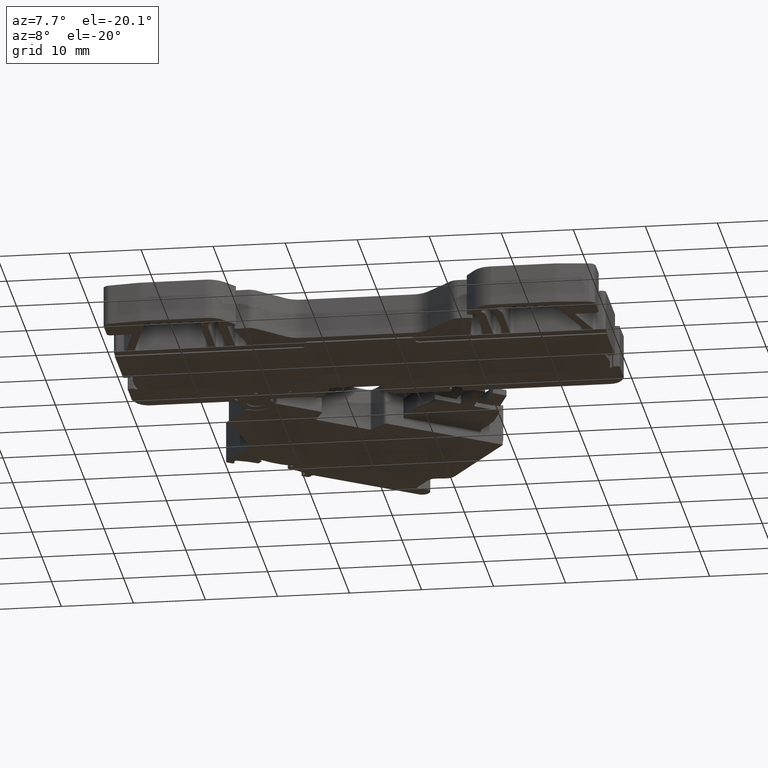
[diagram: clean part render]
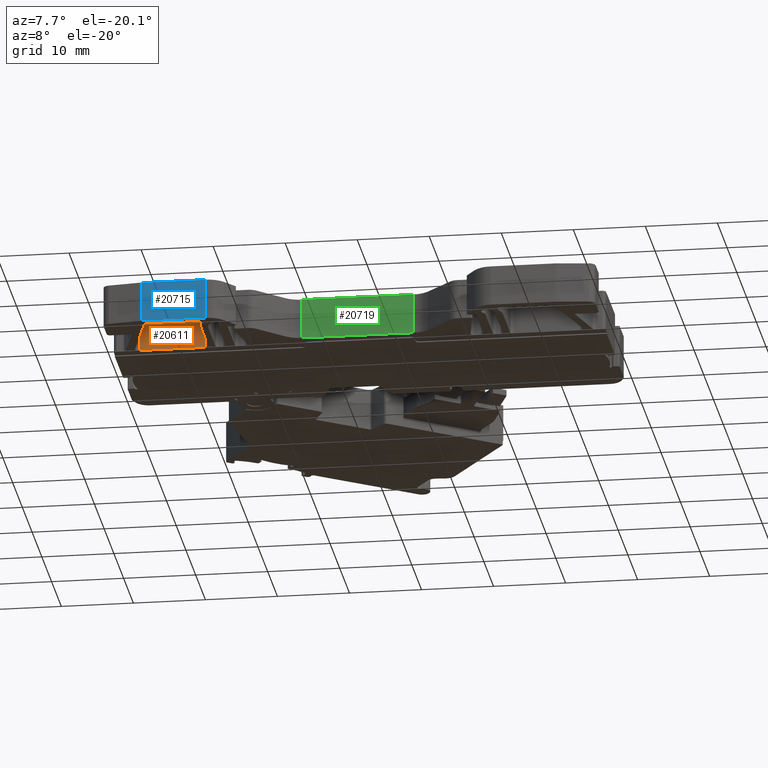
[diagram: same view with three faces highlighted in distinct colors, each labeled with its STEP entity id]
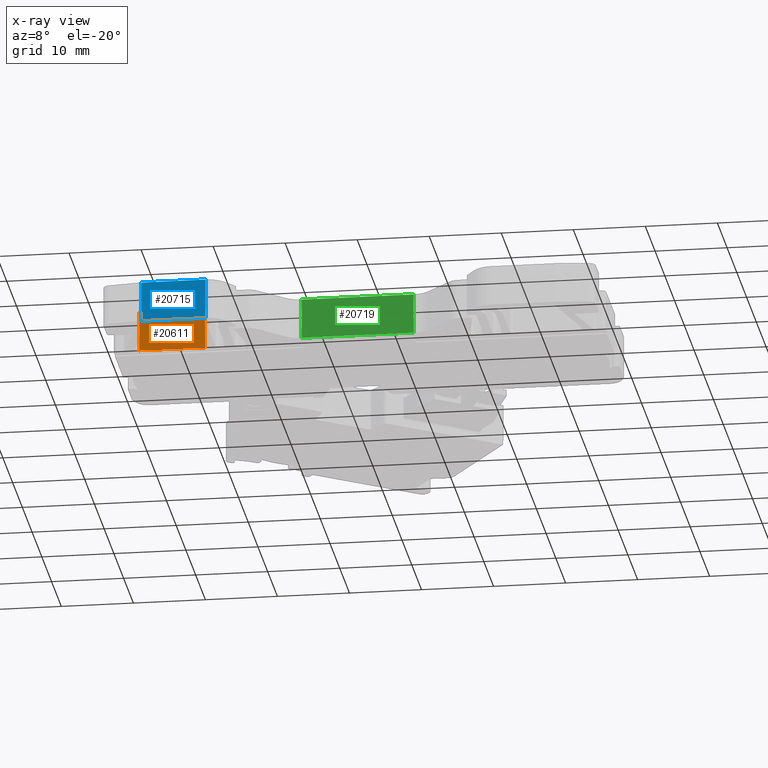
[diagram: x-ray of the same camera — body ghosted, the three highlighted faces saturated]
A machine part, auxiliary view with three faces highlighted in distinct colors.
The next image is the same camera in x-ray (body ghosted, the three faces saturated) — at least one of them is partly hidden behind the body in this view.
Their STEP definitions:

[orange] entity #20611 — the highlighted planar face has unit normal (0, -1, 0).
#1642 = AXIS2_PLACEMENT_3D ( 'NONE', #12755, #12787, #12780 ) ;
#1652 = VECTOR ( 'NONE', #12016, 1000.000000000000000 ) ;
#1868 = CARTESIAN_POINT ( 'NONE',  ( 1533.702505403980000, 724.6847033329281700, 5.799999999999999800 ) ) ;
#1927 = CARTESIAN_POINT ( 'NONE',  ( 1533.702505403980000, 724.6847033329281700, 0.1999999999999997900 ) ) ;
#4038 = VECTOR ( 'NONE', #9867, 1000.000000000000000 ) ;
#4180 = VECTOR ( 'NONE', #9605, 1000.000000000000000 ) ;
#4304 = VECTOR ( 'NONE', #9727, 1000.000000000000000 ) ;
#5249 = VERTEX_POINT ( 'NONE', #18714 ) ;
#5288 = VERTEX_POINT ( 'NONE', #18850 ) ;
#6513 = EDGE_CURVE ( 'NONE', #5249, #5288, #9856, .T. ) ;
#6698 = EDGE_CURVE ( 'NONE', #5249, #11680, #9574, .T. ) ;
#6751 = EDGE_CURVE ( 'NONE', #11630, #5288, #9717, .T. ) ;
#9574 = LINE ( 'NONE', #9593, #4180 ) ;
#9593 = CARTESIAN_POINT ( 'NONE',  ( 1597.939456204810100, 724.6847033329282800, 0.2000000000000000100 ) ) ;
#9605 = DIRECTION ( 'NONE',  ( -1.000000000000000000, 0.0000000000000000000, -0.0000000000000000000 ) ) ;
#9717 = LINE ( 'NONE', #9725, #4304 ) ;
#9725 = CARTESIAN_POINT ( 'NONE',  ( 1544.274038733460000, 724.6847033329282800, 5.799999999999999800 ) ) ;
#9727 = DIRECTION ( 'NONE',  ( 1.000000000000000000, 0.0000000000000000000, -0.0000000000000000000 ) ) ;
#9856 = LINE ( 'NONE', #9862, #4038 ) ;
#9862 = CARTESIAN_POINT ( 'NONE',  ( 1542.836139661806800, 724.6847033329282800, 5.799999999999999800 ) ) ;
#9867 = DIRECTION ( 'NONE',  ( -0.0000000000000000000, 0.0000000000000000000, 1.000000000000000000 ) ) ;
#11242 = EDGE_LOOP ( 'NONE', ( #25255, #25244, #25254, #25205 ) ) ;
#11630 = VERTEX_POINT ( 'NONE', #1868 ) ;
#11680 = VERTEX_POINT ( 'NONE', #1927 ) ;
#11845 = LINE ( 'NONE', #12051, #1652 ) ;
#12016 = DIRECTION ( 'NONE',  ( 0.0000000000000000000, -0.0000000000000000000, -1.000000000000000000 ) ) ;
#12051 = CARTESIAN_POINT ( 'NONE',  ( 1533.702505403980000, 724.6847033329282800, 5.799999999999999800 ) ) ;
#12667 = PLANE ( 'NONE',  #1642 ) ;
#12755 = CARTESIAN_POINT ( 'NONE',  ( 1542.836137816010000, 724.6847033329282800, 5.799999999999999800 ) ) ;
#12772 = FACE_OUTER_BOUND ( 'NONE', #11242, .T. ) ;
#12780 = DIRECTION ( 'NONE',  ( 0.0000000000000000000, -0.0000000000000000000, -1.000000000000000000 ) ) ;
#12787 = DIRECTION ( 'NONE',  ( 0.0000000000000000000, -1.000000000000000000, 0.0000000000000000000 ) ) ;
#18714 = CARTESIAN_POINT ( 'NONE',  ( 1542.836139661806800, 724.6847033329265700, 0.1999999999999997900 ) ) ;
#18850 = CARTESIAN_POINT ( 'NONE',  ( 1542.836136463860800, 724.6847033329268000, 5.799999999999998900 ) ) ;
#20525 = EDGE_CURVE ( 'NONE', #11630, #11680, #11845, .T. ) ;
#20611 = ADVANCED_FACE ( 'NONE', ( #12772 ), #12667, .T. ) ;
#25205 = ORIENTED_EDGE ( 'NONE', *, *, #6698, .F. ) ;
#25244 = ORIENTED_EDGE ( 'NONE', *, *, #6751, .F. ) ;
#25254 = ORIENTED_EDGE ( 'NONE', *, *, #20525, .T. ) ;
#25255 = ORIENTED_EDGE ( 'NONE', *, *, #6513, .T. ) ;

[blue] entity #20715 — the highlighted planar face has unit normal (0, 1, 0).
#372 = AXIS2_PLACEMENT_3D ( 'NONE', #13479, #13488, #13458 ) ;
#548 = VECTOR ( 'NONE', #22845, 1000.000000000000000 ) ;
#1770 = CARTESIAN_POINT ( 'NONE',  ( 1535.570949267440000, 712.9846922092302700, 5.799999999999999800 ) ) ;
#2307 = CARTESIAN_POINT ( 'NONE',  ( 1535.570949267440000, 712.9846922092302700, 0.1999999999999997900 ) ) ;
#4207 = VECTOR ( 'NONE', #9603, 1000.000000000000000 ) ;
#4280 = VECTOR ( 'NONE', #18393, 1000.000000000000000 ) ;
#4287 = VECTOR ( 'NONE', #9805, 1000.000000000000000 ) ;
#5546 = VERTEX_POINT ( 'NONE', #19302 ) ;
#5547 = VERTEX_POINT ( 'NONE', #19255 ) ;
#6697 = EDGE_CURVE ( 'NONE', #5547, #5546, #9561, .T. ) ;
#6767 = EDGE_CURVE ( 'NONE', #5546, #17417, #9775, .T. ) ;
#6782 = EDGE_CURVE ( 'NONE', #11463, #5547, #18400, .T. ) ;
#7341 = EDGE_CURVE ( 'NONE', #17417, #11463, #22805, .T. ) ;
#9561 = LINE ( 'NONE', #9583, #4207 ) ;
#9583 = CARTESIAN_POINT ( 'NONE',  ( 1544.467661418855000, 712.9846922092302700, 5.799999999999999800 ) ) ;
#9603 = DIRECTION ( 'NONE',  ( -0.0000000000000000000, 0.0000000000000000000, -1.000000000000000000 ) ) ;
#9775 = LINE ( 'NONE', #9802, #4287 ) ;
#9802 = CARTESIAN_POINT ( 'NONE',  ( 1597.939456204810100, 712.9846922092302700, 0.2000000000000000100 ) ) ;
#9805 = DIRECTION ( 'NONE',  ( -1.000000000000000000, 0.0000000000000000000, -0.0000000000000000000 ) ) ;
#11183 = EDGE_LOOP ( 'NONE', ( #25230, #25226, #25242, #25220 ) ) ;
#11463 = VERTEX_POINT ( 'NONE', #1770 ) ;
#13458 = DIRECTION ( 'NONE',  ( 0.0000000000000000000, -0.0000000000000000000, 1.000000000000000000 ) ) ;
#13459 = FACE_OUTER_BOUND ( 'NONE', #11183, .T. ) ;
#13477 = PLANE ( 'NONE',  #372 ) ;
#13479 = CARTESIAN_POINT ( 'NONE',  ( 1544.467661418855000, 712.9846922092302700, 5.799999999999999800 ) ) ;
#13488 = DIRECTION ( 'NONE',  ( 0.0000000000000000000, 1.000000000000000000, 0.0000000000000000000 ) ) ;
#17417 = VERTEX_POINT ( 'NONE', #2307 ) ;
#18393 = DIRECTION ( 'NONE',  ( 1.000000000000000000, 0.0000000000000000000, -0.0000000000000000000 ) ) ;
#18395 = CARTESIAN_POINT ( 'NONE',  ( 1544.274038733460000, 712.9846922092302700, 5.799999999999999800 ) ) ;
#18400 = LINE ( 'NONE', #18395, #4280 ) ;
#19255 = CARTESIAN_POINT ( 'NONE',  ( 1544.467662230272500, 712.9846922092302700, 5.799999999999999800 ) ) ;
#19302 = CARTESIAN_POINT ( 'NONE',  ( 1544.467662230272500, 712.9846922092302700, 0.1999999999999996500 ) ) ;
#20715 = ADVANCED_FACE ( 'NONE', ( #13459 ), #13477, .F. ) ;
#22805 = LINE ( 'NONE', #22849, #548 ) ;
#22845 = DIRECTION ( 'NONE',  ( 0.0000000000000000000, -0.0000000000000000000, 1.000000000000000000 ) ) ;
#22849 = CARTESIAN_POINT ( 'NONE',  ( 1535.570949267440000, 712.9846922092302700, 5.799999999999999800 ) ) ;
#25220 = ORIENTED_EDGE ( 'NONE', *, *, #6697, .F. ) ;
#25226 = ORIENTED_EDGE ( 'NONE', *, *, #7341, .F. ) ;
#25230 = ORIENTED_EDGE ( 'NONE', *, *, #6782, .F. ) ;
#25242 = ORIENTED_EDGE ( 'NONE', *, *, #6767, .F. ) ;

[green] entity #20719 — the highlighted planar face has unit normal (0, 1, 0).
#348 = AXIS2_PLACEMENT_3D ( 'NONE', #13465, #13485, #13450 ) ;
#4171 = VECTOR ( 'NONE', #9499, 1000.000000000000000 ) ;
#4205 = VECTOR ( 'NONE', #9568, 1000.000000000000000 ) ;
#4206 = VECTOR ( 'NONE', #9679, 1000.000000000000000 ) ;
#4274 = VECTOR ( 'NONE', #9818, 1000.000000000000000 ) ;
#5499 = VERTEX_POINT ( 'NONE', #19205 ) ;
#5514 = VERTEX_POINT ( 'NONE', #19229 ) ;
#5516 = VERTEX_POINT ( 'NONE', #19244 ) ;
#5530 = VERTEX_POINT ( 'NONE', #19264 ) ;
#6682 = EDGE_CURVE ( 'NONE', #5530, #5514, #9491, .T. ) ;
#6689 = EDGE_CURVE ( 'NONE', #5530, #5499, #9557, .T. ) ;
#6729 = EDGE_CURVE ( 'NONE', #5514, #5516, #9701, .T. ) ;
#6775 = EDGE_CURVE ( 'NONE', #5516, #5499, #9831, .T. ) ;
#9491 = LINE ( 'NONE', #9498, #4171 ) ;
#9498 = CARTESIAN_POINT ( 'NONE',  ( 1544.274038733460000, 722.6935715293229800, 5.799999999999999800 ) ) ;
#9499 = DIRECTION ( 'NONE',  ( 1.000000000000000000, 0.0000000000000000000, -0.0000000000000000000 ) ) ;
#9557 = LINE ( 'NONE', #9562, #4205 ) ;
#9562 = CARTESIAN_POINT ( 'NONE',  ( 1556.519694239554800, 722.6935715293228700, 5.799999999999999800 ) ) ;
#9568 = DIRECTION ( 'NONE',  ( 0.0000000000000000000, 0.0000000000000000000, -1.000000000000000000 ) ) ;
#9679 = DIRECTION ( 'NONE',  ( -0.0000000000000000000, 0.0000000000000000000, -1.000000000000000000 ) ) ;
#9697 = CARTESIAN_POINT ( 'NONE',  ( 1572.052580747035100, 722.6935715293229800, 5.799999999999999800 ) ) ;
#9701 = LINE ( 'NONE', #9697, #4206 ) ;
#9794 = CARTESIAN_POINT ( 'NONE',  ( 1597.939456204810100, 722.6935715293229800, 0.2000000000000000100 ) ) ;
#9818 = DIRECTION ( 'NONE',  ( -1.000000000000000000, 0.0000000000000000000, -0.0000000000000000000 ) ) ;
#9831 = LINE ( 'NONE', #9794, #4274 ) ;
#11185 = EDGE_LOOP ( 'NONE', ( #26486, #26537, #26511, #26541 ) ) ;
#13450 = DIRECTION ( 'NONE',  ( 0.0000000000000000000, -0.0000000000000000000, 1.000000000000000000 ) ) ;
#13455 = FACE_OUTER_BOUND ( 'NONE', #11185, .T. ) ;
#13464 = PLANE ( 'NONE',  #348 ) ;
#13465 = CARTESIAN_POINT ( 'NONE',  ( 1555.484160983935000, 722.6935715293229800, 5.799999999999999800 ) ) ;
#13485 = DIRECTION ( 'NONE',  ( 0.0000000000000000000, 1.000000000000000000, 0.0000000000000000000 ) ) ;
#19205 = CARTESIAN_POINT ( 'NONE',  ( 1556.519694239554800, 722.6935715293229800, 0.1999999999999997300 ) ) ;
#19229 = CARTESIAN_POINT ( 'NONE',  ( 1572.052580747035100, 722.6935715293229800, 5.799999999999999800 ) ) ;
#19244 = CARTESIAN_POINT ( 'NONE',  ( 1572.052580747035100, 722.6935715293229800, 0.1999999999999997300 ) ) ;
#19264 = CARTESIAN_POINT ( 'NONE',  ( 1556.519694239554800, 722.6935715293229800, 5.799999999999999800 ) ) ;
#20719 = ADVANCED_FACE ( 'NONE', ( #13455 ), #13464, .F. ) ;
#26486 = ORIENTED_EDGE ( 'NONE', *, *, #6682, .F. ) ;
#26511 = ORIENTED_EDGE ( 'NONE', *, *, #6775, .F. ) ;
#26537 = ORIENTED_EDGE ( 'NONE', *, *, #6689, .T. ) ;
#26541 = ORIENTED_EDGE ( 'NONE', *, *, #6729, .F. ) ;